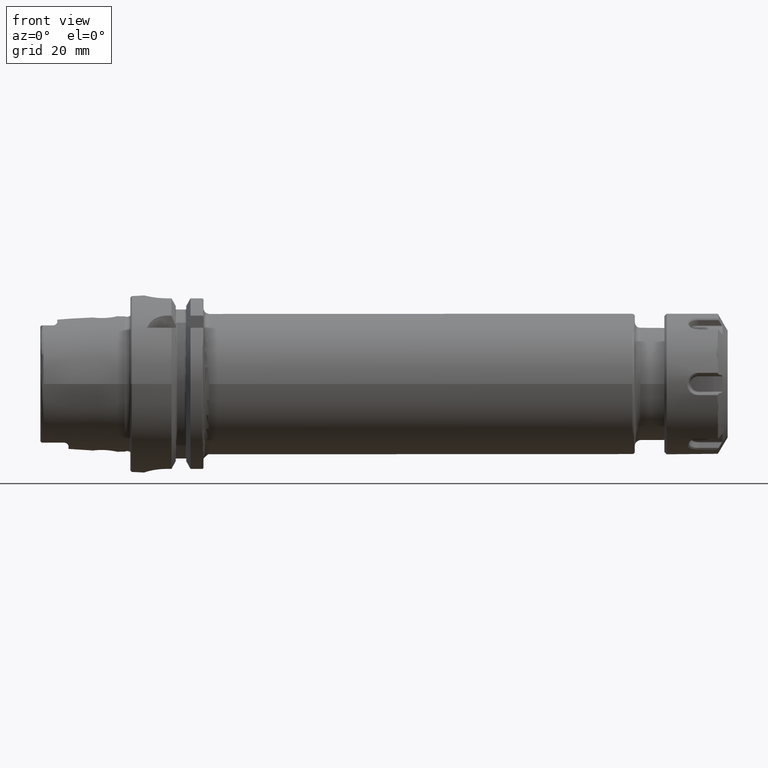
[diagram: clean part render]
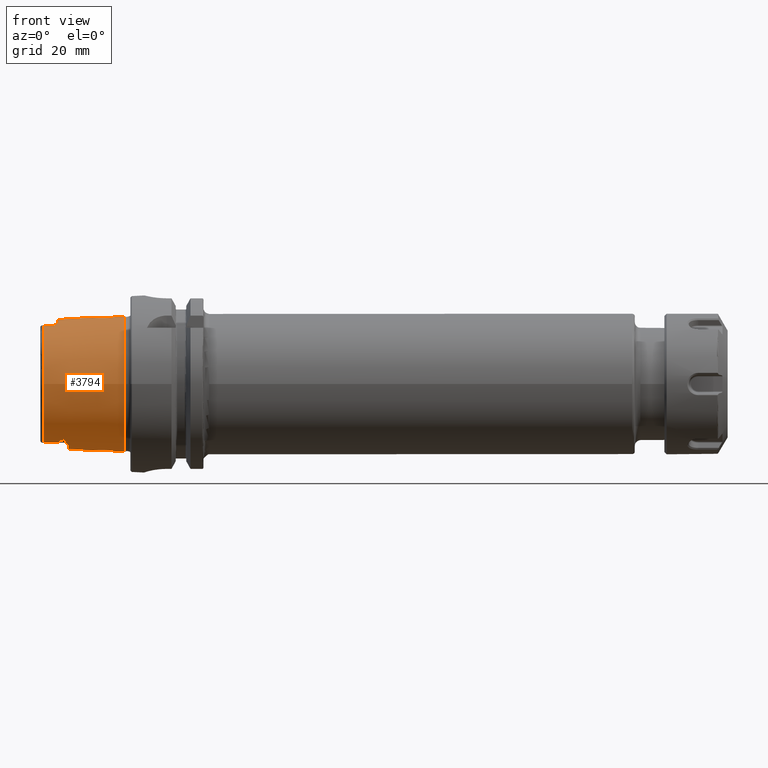
[diagram: same view with one face highlighted and labeled with its STEP entity id]
A machine part, front view. The second image highlights one B-rep face of the part: STEP entity #3794.
In plain terms, the highlighted conical surface has half-angle 2.868 deg.
Its self-contained STEP definition (entity closure, byte-faithful):
#432=(
BOUNDED_CURVE()
B_SPLINE_CURVE(2,(#6080,#6081,#6082),.UNSPECIFIED.,.F.,.F.)
B_SPLINE_CURVE_WITH_KNOTS((3,3),(0.409626932432081,0.704053423593105),
 .UNSPECIFIED.)
CURVE()
GEOMETRIC_REPRESENTATION_ITEM()
RATIONAL_B_SPLINE_CURVE((1.00336468859939,1.00336468859939,1.00162640098087))
REPRESENTATION_ITEM('')
);
#433=(
BOUNDED_CURVE()
B_SPLINE_CURVE(2,(#6147,#6148,#6149),.UNSPECIFIED.,.F.,.F.)
B_SPLINE_CURVE_WITH_KNOTS((3,3),(0.115200441271059,0.409626932432082),
 .UNSPECIFIED.)
CURVE()
GEOMETRIC_REPRESENTATION_ITEM()
RATIONAL_B_SPLINE_CURVE((1.00162640098087,1.00336468859939,1.00336468859939))
REPRESENTATION_ITEM('')
);
#471=B_SPLINE_CURVE_WITH_KNOTS('',3,(#5766,#5767,#5768,#5769,#5770,#5771,
#5772,#5773,#5774,#5775,#5776,#5777,#5778,#5779,#5780,#5781,#5782,#5783),
 .UNSPECIFIED.,.F.,.F.,(4,2,2,2,2,2,2,2,4),(0.937345209538582,1.02529838322405,
1.19618144709472,1.36706451096539,1.42680307053412,1.48654163010284,1.50096970945234,
1.50818374912708,1.51539778880183),.UNSPECIFIED.);
#474=B_SPLINE_CURVE_WITH_KNOTS('',3,(#5834,#5835,#5836,#5837,#5838,#5839,
#5840,#5841,#5842,#5843,#5844,#5845,#5846,#5847,#5848,#5849,#5850,#5851),
 .UNSPECIFIED.,.F.,.F.,(4,2,2,2,2,2,2,2,4),(1.51539778880184,1.52261182847659,
1.52982586815134,1.54425394750083,1.60399250706955,1.66373106663827,1.83461413050895,
2.00549719437962,2.0934503680651),.UNSPECIFIED.);
#476=B_SPLINE_CURVE_WITH_KNOTS('',3,(#5889,#5890,#5891,#5892,#5893,#5894,
#5895,#5896),.UNSPECIFIED.,.F.,.F.,(4,2,2,4),(1.77153596711132,1.83492838643131,
2.00584149209106,2.09371558288111),.UNSPECIFIED.);
#477=B_SPLINE_CURVE_WITH_KNOTS('',3,(#5913,#5914,#5915,#5916,#5917,#5918,
#5919,#5920),.UNSPECIFIED.,.F.,.F.,(4,2,2,4),(0.937604543168422,1.02547863395848,
1.19639173961822,1.25978415893822),.UNSPECIFIED.);
#481=B_SPLINE_CURVE_WITH_KNOTS('',3,(#6052,#6053,#6054,#6055,#6056,#6057,
#6058,#6059,#6060,#6061,#6062,#6063,#6064,#6065,#6066,#6067,#6068,#6069,
#6070,#6071,#6072),.UNSPECIFIED.,.T.,.F.,(4,1,1,1,1,1,1,1,1,1,1,1,1,1,1,
1,1,1,4),(-2.26557970640445,-2.10375258451842,-1.94192546263239,-1.86101190168937,
-1.78009834074636,-1.61827121886032,-1.45644409697429,-1.37553053603127,
-1.29461697508826,-1.18673222716424,-1.07884747924022,-0.970962731316194,
-0.863077983392173,-0.755193235468151,-0.647308487544129,-0.485481365658097,
-0.323654243772065,-0.161827121886032,0.),.UNSPECIFIED.);
#482=B_SPLINE_CURVE_WITH_KNOTS('',3,(#6084,#6085,#6086,#6087,#6088,#6089,
#6090,#6091,#6092,#6093,#6094,#6095,#6096,#6097,#6098,#6099,#6100,#6101),
 .UNSPECIFIED.,.F.,.F.,(4,2,2,2,2,2,2,2,4),(0.,0.0903555875079969,0.135533381261995,
0.180711175015994,0.191679253692351,0.19716329303053,0.202647332368709,
0.208141673454593,0.210684760739668),.UNSPECIFIED.);
#483=B_SPLINE_CURVE_WITH_KNOTS('',3,(#6103,#6104,#6105,#6106,#6107,#6108,
#6109,#6110,#6111,#6112),.UNSPECIFIED.,.F.,.F.,(4,2,2,2,4),(0.278659319230644,
0.333918541832918,0.442805459609059,0.482035165304725,0.500954004489182),
 .UNSPECIFIED.);
#484=B_SPLINE_CURVE_WITH_KNOTS('',3,(#6116,#6117,#6118,#6119,#6120,#6121,
#6122,#6123,#6124,#6125,#6126,#6127),.UNSPECIFIED.,.F.,.F.,(4,2,2,2,2,4),
(0.500954004487676,0.50386398744684,0.528331134037123,0.580812359186529,
0.712749669755937,0.726249722962502),.UNSPECIFIED.);
#485=B_SPLINE_CURVE_WITH_KNOTS('',3,(#6129,#6130,#6131,#6132,#6133,#6134,
#6135,#6136,#6137,#6138,#6139,#6140,#6141,#6142,#6143,#6144,#6145,#6146),
 .UNSPECIFIED.,.F.,.F.,(4,2,2,2,2,2,2,2,4),(0.599581967500703,0.602125054785784,
0.607619395871668,0.613103435209847,0.618587474548027,0.629555553224386,
0.674733346978385,0.719911140732385,0.810266728240384),.UNSPECIFIED.);
#486=B_SPLINE_CURVE_WITH_KNOTS('',3,(#6152,#6153,#6154,#6155,#6156,#6157,
#6158,#6159,#6160,#6161,#6162,#6163,#6164,#6165),.UNSPECIFIED.,.F.,.F.,
(4,2,2,2,2,2,4),(0.612787130114313,0.692070205833102,0.846913877835571,
0.923866042650838,0.97973233720279,1.02631946127952,1.05465853457734),
 .UNSPECIFIED.);
#487=B_SPLINE_CURVE_WITH_KNOTS('',3,(#6168,#6169,#6170,#6171,#6172,#6173,
#6174,#6175,#6176,#6177,#6178,#6179,#6180,#6181),.UNSPECIFIED.,.F.,.F.,
(4,2,2,2,2,2,4),(0.413162960284885,0.443293122422243,0.485069563612126,
0.532728756474865,0.604908335246701,0.737193690325506,0.813919818316776),
 .UNSPECIFIED.);
#488=B_SPLINE_CURVE_WITH_KNOTS('',3,(#6184,#6185,#6186,#6187,#6188,#6189,
#6190,#6191,#6192,#6193,#6194,#6195,#6196,#6197,#6198,#6199,#6200,#6201,
#6202,#6203,#6204),.UNSPECIFIED.,.T.,.F.,(4,1,1,1,1,1,1,1,1,1,1,1,1,1,1,
1,1,1,4),(-2.26557970640445,-2.10375258451842,-1.94192546263239,-1.78009834074636,
-1.61827121886032,-1.45644409697429,-1.37553053603127,-1.29461697508826,
-1.18673222716424,-1.07884747924022,-1.0249051052782,-0.970962731316194,
-0.755193235468151,-0.647308487544129,-0.485481365658097,-0.404567804715081,
-0.323654243772065,-0.161827121886032,0.),.UNSPECIFIED.);
#628=CONICAL_SURFACE('',#4169,23.4974838444284,0.0500583457465973);
#657=FACE_BOUND('',#991,.T.);
#658=FACE_BOUND('',#992,.T.);
#780=FACE_OUTER_BOUND('',#990,.T.);
#990=EDGE_LOOP('',(#2788,#2789,#2790,#2791,#2792,#2793,#2794,#2795,#2796,
#2797,#2798,#2799,#2800,#2801,#2802,#2803,#2804,#2805,#2806,#2807));
#991=EDGE_LOOP('',(#2808));
#992=EDGE_LOOP('',(#2809));
#1215=LINE('',#6077,#1408);
#1408=VECTOR('',#4735,23.4974838444284);
#1601=CIRCLE('',#4170,24.2204308617234);
#1602=CIRCLE('',#4171,22.7745368271334);
#1603=CIRCLE('',#4172,23.2184268537074);
#1604=CIRCLE('',#4173,22.7745368271334);
#1605=CIRCLE('',#4174,23.0180260521042);
#1606=CIRCLE('',#4175,22.7745368271334);
#1816=VERTEX_POINT('',#5763);
#1817=VERTEX_POINT('',#5765);
#1827=VERTEX_POINT('',#5820);
#1828=VERTEX_POINT('',#5833);
#1838=VERTEX_POINT('',#5875);
#1839=VERTEX_POINT('',#5888);
#1845=VERTEX_POINT('',#5910);
#1846=VERTEX_POINT('',#5912);
#1849=VERTEX_POINT('',#6023);
#1852=VERTEX_POINT('',#6074);
#1853=VERTEX_POINT('',#6076);
#1854=VERTEX_POINT('',#6079);
#1855=VERTEX_POINT('',#6083);
#1856=VERTEX_POINT('',#6102);
#1857=VERTEX_POINT('',#6113);
#1858=VERTEX_POINT('',#6115);
#1859=VERTEX_POINT('',#6128);
#1860=VERTEX_POINT('',#6151);
#1861=VERTEX_POINT('',#6166);
#1862=VERTEX_POINT('',#6183);
#2169=EDGE_CURVE('',#1817,#1816,#471,.T.);
#2183=EDGE_CURVE('',#1828,#1827,#474,.T.);
#2196=EDGE_CURVE('',#1839,#1838,#476,.T.);
#2204=EDGE_CURVE('',#1846,#1845,#477,.T.);
#2212=EDGE_CURVE('',#1849,#1849,#481,.T.);
#2213=EDGE_CURVE('',#1852,#1852,#1601,.T.);
#2214=EDGE_CURVE('',#1852,#1853,#1215,.T.);
#2215=EDGE_CURVE('',#1853,#1817,#1602,.T.);
#2216=EDGE_CURVE('',#1816,#1854,#432,.T.);
#2217=EDGE_CURVE('',#1855,#1854,#482,.T.);
#2218=EDGE_CURVE('',#1856,#1855,#483,.T.);
#2219=EDGE_CURVE('',#1856,#1857,#1603,.T.);
#2220=EDGE_CURVE('',#1858,#1857,#484,.T.);
#2221=EDGE_CURVE('',#1859,#1858,#485,.T.);
#2222=EDGE_CURVE('',#1859,#1828,#433,.T.);
#2223=EDGE_CURVE('',#1827,#1846,#1604,.T.);
#2224=EDGE_CURVE('',#1860,#1845,#486,.T.);
#2225=EDGE_CURVE('',#1860,#1861,#1605,.T.);
#2226=EDGE_CURVE('',#1839,#1861,#487,.T.);
#2227=EDGE_CURVE('',#1838,#1853,#1606,.T.);
#2228=EDGE_CURVE('',#1862,#1862,#488,.T.);
#2788=ORIENTED_EDGE('',*,*,#2213,.F.);
#2789=ORIENTED_EDGE('',*,*,#2214,.T.);
#2790=ORIENTED_EDGE('',*,*,#2215,.T.);
#2791=ORIENTED_EDGE('',*,*,#2169,.T.);
#2792=ORIENTED_EDGE('',*,*,#2216,.T.);
#2793=ORIENTED_EDGE('',*,*,#2217,.F.);
#2794=ORIENTED_EDGE('',*,*,#2218,.F.);
#2795=ORIENTED_EDGE('',*,*,#2219,.T.);
#2796=ORIENTED_EDGE('',*,*,#2220,.F.);
#2797=ORIENTED_EDGE('',*,*,#2221,.F.);
#2798=ORIENTED_EDGE('',*,*,#2222,.T.);
#2799=ORIENTED_EDGE('',*,*,#2183,.T.);
#2800=ORIENTED_EDGE('',*,*,#2223,.T.);
#2801=ORIENTED_EDGE('',*,*,#2204,.T.);
#2802=ORIENTED_EDGE('',*,*,#2224,.F.);
#2803=ORIENTED_EDGE('',*,*,#2225,.T.);
#2804=ORIENTED_EDGE('',*,*,#2226,.F.);
#2805=ORIENTED_EDGE('',*,*,#2196,.T.);
#2806=ORIENTED_EDGE('',*,*,#2227,.T.);
#2807=ORIENTED_EDGE('',*,*,#2214,.F.);
#2808=ORIENTED_EDGE('',*,*,#2228,.F.);
#2809=ORIENTED_EDGE('',*,*,#2212,.F.);
#3794=ADVANCED_FACE('',(#780,#657,#658),#628,.T.);
#4169=AXIS2_PLACEMENT_3D('',#6073,#4731,#4732);
#4170=AXIS2_PLACEMENT_3D('',#6075,#4733,#4734);
#4171=AXIS2_PLACEMENT_3D('',#6078,#4736,#4737);
#4172=AXIS2_PLACEMENT_3D('',#6114,#4738,#4739);
#4173=AXIS2_PLACEMENT_3D('',#6150,#4740,#4741);
#4174=AXIS2_PLACEMENT_3D('',#6167,#4742,#4743);
#4175=AXIS2_PLACEMENT_3D('',#6182,#4744,#4745);
#4731=DIRECTION('center_axis',(1.,0.,0.));
#4732=DIRECTION('ref_axis',(0.,1.,0.));
#4733=DIRECTION('center_axis',(1.,0.,0.));
#4734=DIRECTION('ref_axis',(0.,0.,-1.));
#4735=DIRECTION('',(-0.998747342623037,0.0500374420151821,6.1278193201414E-18));
#4736=DIRECTION('center_axis',(1.,0.,0.));
#4737=DIRECTION('ref_axis',(0.,0.,-1.));
#4738=DIRECTION('center_axis',(1.,0.,0.));
#4739=DIRECTION('ref_axis',(0.,1.,0.));
#4740=DIRECTION('center_axis',(1.,0.,0.));
#4741=DIRECTION('ref_axis',(0.,0.,-1.));
#4742=DIRECTION('center_axis',(1.,0.,0.));
#4743=DIRECTION('ref_axis',(0.,1.,0.));
#4744=DIRECTION('center_axis',(1.,0.,0.));
#4745=DIRECTION('ref_axis',(0.,0.,-1.));
#5763=CARTESIAN_POINT('',(-25.0978148584663,-10.4556386714692,-20.5570425901345));
#5765=CARTESIAN_POINT('',(-30.8600449304182,-9.1175788960984,-20.8698175067219));
#5766=CARTESIAN_POINT('Ctrl Pts',(-30.8600449304182,-9.11757889609839,-20.8698175067219));
#5767=CARTESIAN_POINT('Ctrl Pts',(-30.5458909643235,-9.15590567779842,-20.8702489912062));
#5768=CARTESIAN_POINT('Ctrl Pts',(-30.2333885582947,-9.19553638844306,-20.8699331931734));
#5769=CARTESIAN_POINT('Ctrl Pts',(-29.3200764392134,-9.31683719872071,-20.8662835753638));
#5770=CARTESIAN_POINT('Ctrl Pts',(-28.7253632733503,-9.40260250516231,-20.8605355436413));
#5771=CARTESIAN_POINT('Ctrl Pts',(-27.5600080230793,-9.59491882494623,-20.8370744460606));
#5772=CARTESIAN_POINT('Ctrl Pts',(-26.9889879780948,-9.69930871486833,-20.8204848534175));
#5773=CARTESIAN_POINT('Ctrl Pts',(-26.243078447761,-9.87995363103469,-20.7763753921414));
#5774=CARTESIAN_POINT('Ctrl Pts',(-26.0321916389,-9.93536599911181,-20.7617058242075));
#5775=CARTESIAN_POINT('Ctrl Pts',(-25.6226314158803,-10.0671936374524,-20.7209199758996));
#5776=CARTESIAN_POINT('Ctrl Pts',(-25.4220827984544,-10.138547720478,-20.6974983203461));
#5777=CARTESIAN_POINT('Ctrl Pts',(-25.2208246412483,-10.2713306216733,-20.6428847988051));
#5778=CARTESIAN_POINT('Ctrl Pts',(-25.1803732229877,-10.3024924958121,-20.6296329719333));
#5779=CARTESIAN_POINT('Ctrl Pts',(-25.1342239230183,-10.3555186194877,-20.6056268137561));
#5780=CARTESIAN_POINT('Ctrl Pts',(-25.1212840412597,-10.3742534446523,-20.5969290505833));
#5781=CARTESIAN_POINT('Ctrl Pts',(-25.10307563401,-10.4135952575897,-20.5780886428205));
#5782=CARTESIAN_POINT('Ctrl Pts',(-25.0978148584663,-10.434204936409,-20.5679441285336));
#5783=CARTESIAN_POINT('Ctrl Pts',(-25.0978148584663,-10.4556386714692,-20.5570425901345));
#5820=CARTESIAN_POINT('',(-30.8600449304182,9.1175788960984,-20.8698175067219));
#5833=CARTESIAN_POINT('',(-25.0978148584663,10.4556386714692,-20.5570425901345));
#5834=CARTESIAN_POINT('Ctrl Pts',(-25.0978148584663,10.4556386714692,-20.5570425901345));
#5835=CARTESIAN_POINT('Ctrl Pts',(-25.0978148584663,10.434204936409,-20.5679441285336));
#5836=CARTESIAN_POINT('Ctrl Pts',(-25.1030756340098,10.4135952575897,-20.5780886428205));
#5837=CARTESIAN_POINT('Ctrl Pts',(-25.1212840412595,10.3742534446523,-20.5969290505833));
#5838=CARTESIAN_POINT('Ctrl Pts',(-25.1342239230183,10.3555186194877,-20.605626813756));
#5839=CARTESIAN_POINT('Ctrl Pts',(-25.1803732229877,10.3024924958122,-20.6296329719333));
#5840=CARTESIAN_POINT('Ctrl Pts',(-25.2208246412482,10.2713306216733,-20.6428847988051));
#5841=CARTESIAN_POINT('Ctrl Pts',(-25.4220827984543,10.138547720478,-20.6974983203461));
#5842=CARTESIAN_POINT('Ctrl Pts',(-25.6226314158802,10.0671936374525,-20.7209199758995));
#5843=CARTESIAN_POINT('Ctrl Pts',(-26.0321916388999,9.93536599911188,-20.7617058242075));
#5844=CARTESIAN_POINT('Ctrl Pts',(-26.2430784477608,9.8799536310347,-20.7763753921414));
#5845=CARTESIAN_POINT('Ctrl Pts',(-26.9889879780946,9.69930871486834,-20.8204848534175));
#5846=CARTESIAN_POINT('Ctrl Pts',(-27.5600080230791,9.59491882494626,-20.8370744460606));
#5847=CARTESIAN_POINT('Ctrl Pts',(-28.7253632733501,9.40260250516234,-20.8605355436413));
#5848=CARTESIAN_POINT('Ctrl Pts',(-29.3200764392133,9.31683719872073,-20.8662835753638));
#5849=CARTESIAN_POINT('Ctrl Pts',(-30.2333885582946,9.19553638844306,-20.8699331931734));
#5850=CARTESIAN_POINT('Ctrl Pts',(-30.5458909643235,9.15590567779843,-20.8702489912062));
#5851=CARTESIAN_POINT('Ctrl Pts',(-30.8600449304182,9.11757889609839,-20.8698175067219));
#5875=CARTESIAN_POINT('',(-30.8600449304182,-9.1175788960984,20.8698175067219));
#5888=CARTESIAN_POINT('',(-27.5000000000755,-9.61067758640857,20.8329168403914));
#5889=CARTESIAN_POINT('Ctrl Pts',(-27.500000000078,-9.61067758642201,20.8329168403892));
#5890=CARTESIAN_POINT('Ctrl Pts',(-27.7125737548958,-9.57148784129481,20.8392673030342));
#5891=CARTESIAN_POINT('Ctrl Pts',(-27.9270578144772,-9.53434241390281,20.8444654011212));
#5892=CARTESIAN_POINT('Ctrl Pts',(-28.7259960474271,-9.40250589525003,20.8605443506117));
#5893=CARTESIAN_POINT('Ctrl Pts',(-29.3208153495341,-9.3167323629879,20.8662898636256));
#5894=CARTESIAN_POINT('Ctrl Pts',(-30.2339565561897,-9.19546438357122,20.8699337533607));
#5895=CARTESIAN_POINT('Ctrl Pts',(-30.5461763429502,-9.15587086160794,20.8702485992441));
#5896=CARTESIAN_POINT('Ctrl Pts',(-30.8600449304182,-9.11757889609839,20.8698175067219));
#5910=CARTESIAN_POINT('',(-27.5000000000755,9.61067758640857,20.8329168403914));
#5912=CARTESIAN_POINT('',(-30.8600449304182,9.1175788960984,20.8698175067219));
#5913=CARTESIAN_POINT('Ctrl Pts',(-30.8600449304182,9.11757889609839,20.8698175067219));
#5914=CARTESIAN_POINT('Ctrl Pts',(-30.5461763429502,9.15587086160794,20.8702485992441));
#5915=CARTESIAN_POINT('Ctrl Pts',(-30.2339565561898,9.1954643835712,20.8699337533607));
#5916=CARTESIAN_POINT('Ctrl Pts',(-29.3208153495341,9.31673236298789,20.8662898636256));
#5917=CARTESIAN_POINT('Ctrl Pts',(-28.7259960474271,9.40250589525004,20.8605443506117));
#5918=CARTESIAN_POINT('Ctrl Pts',(-27.9270578144772,9.53434241390281,20.8444654011213));
#5919=CARTESIAN_POINT('Ctrl Pts',(-27.7125737548958,9.57148784129481,20.8392673030342));
#5920=CARTESIAN_POINT('Ctrl Pts',(-27.500000000078,9.61067758642201,20.8329168403892));
#6023=CARTESIAN_POINT('',(-9.02925407423461,4.24282684078987,-23.4881339907642));
#6052=CARTESIAN_POINT('Ctrl Pts',(-9.02925407423461,4.24282684078987,-23.4881339907642));
#6053=CARTESIAN_POINT('Ctrl Pts',(-8.41794937729802,4.24763962021184,-23.5183867686952));
#6054=CARTESIAN_POINT('Ctrl Pts',(-7.09719062335626,3.96214027152736,-23.6400391343347));
#6055=CARTESIAN_POINT('Ctrl Pts',(-5.85872384144614,2.97350456469995,-23.8514262488192));
#6056=CARTESIAN_POINT('Ctrl Pts',(-5.16063731756733,1.91003066646729,-23.9915936511341));
#6057=CARTESIAN_POINT('Ctrl Pts',(-4.71967908413408,0.667233683255142,-24.0892210412975));
#6058=CARTESIAN_POINT('Ctrl Pts',(-4.69487671176925,-0.887140287368457,
-24.0946920123011));
#6059=CARTESIAN_POINT('Ctrl Pts',(-5.41575081787389,-2.43754371827964,-23.9347651451498));
#6060=CARTESIAN_POINT('Ctrl Pts',(-6.27200380070453,-3.29839456985501,-23.7808774616528));
#6061=CARTESIAN_POINT('Ctrl Pts',(-7.16157899956841,-3.8911177348338,-23.6460473005722));
#6062=CARTESIAN_POINT('Ctrl Pts',(-8.32145673061719,-4.25090987526345,-23.5228217546797));
#6063=CARTESIAN_POINT('Ctrl Pts',(-9.55257943298201,-4.26858049401254,-23.456823819944));
#6064=CARTESIAN_POINT('Ctrl Pts',(-10.8313666496774,-3.90479981259957,-23.4573341216261));
#6065=CARTESIAN_POINT('Ctrl Pts',(-11.8961422246607,-3.1841113544275,-23.5146565929276));
#6066=CARTESIAN_POINT('Ctrl Pts',(-12.7003698798572,-2.21954630167764,-23.5891273633448));
#6067=CARTESIAN_POINT('Ctrl Pts',(-13.2855020445789,-0.774775065590821,
-23.6608303251767));
#6068=CARTESIAN_POINT('Ctrl Pts',(-13.2993151465013,0.893979362185892,-23.6627026291545));
#6069=CARTESIAN_POINT('Ctrl Pts',(-12.4532300975689,2.72994365265342,-23.5583564408809));
#6070=CARTESIAN_POINT('Ctrl Pts',(-10.9641321027099,3.91707089294868,-23.4490088113463));
#6071=CARTESIAN_POINT('Ctrl Pts',(-9.64055877117117,4.23801406136791,-23.4578812128331));
#6072=CARTESIAN_POINT('Ctrl Pts',(-9.02925407423461,4.24282684078988,-23.4881339907642));
#6073=CARTESIAN_POINT('Origin',(-16.4300224652091,0.,0.));
#6074=CARTESIAN_POINT('',(-2.,-24.2204308617234,-2.96614731287794E-15));
#6075=CARTESIAN_POINT('Origin',(-2.,0.,0.));
#6076=CARTESIAN_POINT('',(-30.8600449304182,-22.7745368271334,-2.78907636274124E-15));
#6077=CARTESIAN_POINT('',(-16.4300224652091,-23.4974838444284,-2.87761183780959E-15));
#6078=CARTESIAN_POINT('Origin',(-30.8600449304182,0.,0.));
#6079=CARTESIAN_POINT('',(-23.5,-12.1698923613067,-19.6851459107563));
#6080=CARTESIAN_POINT('Ctrl Pts',(-25.0978148584663,-10.4556386714692,-20.5570425901345));
#6081=CARTESIAN_POINT('Ctrl Pts',(-25.0978148584663,-11.3112805797553,-20.1218495128239));
#6082=CARTESIAN_POINT('Ctrl Pts',(-23.5,-12.1698923613067,-19.6851459107563));
#6083=CARTESIAN_POINT('',(-22.9409864229987,-10.5046262057925,-20.6533579718259));
#6084=CARTESIAN_POINT('Ctrl Pts',(-22.9409864229987,-10.5046262057925,-20.6533579718259));
#6085=CARTESIAN_POINT('Ctrl Pts',(-22.9409864229987,-10.7730829666602,-20.516816595398));
#6086=CARTESIAN_POINT('Ctrl Pts',(-22.9574206817668,-11.0623666606509,-20.3616089931375));
#6087=CARTESIAN_POINT('Ctrl Pts',(-23.0214299513488,-11.4761009466796,-20.1257517714531));
#6088=CARTESIAN_POINT('Ctrl Pts',(-23.0491283200772,-11.6099871059181,-20.0471312410654));
#6089=CARTESIAN_POINT('Ctrl Pts',(-23.1253497318037,-11.8635092488451,-19.8937049027563));
#6090=CARTESIAN_POINT('Ctrl Pts',(-23.1681553584466,-11.9845149642791,-19.8183788237048));
#6091=CARTESIAN_POINT('Ctrl Pts',(-23.2720205567489,-12.1145084587468,-19.7327054731899));
#6092=CARTESIAN_POINT('Ctrl Pts',(-23.2970638659452,-12.1405120406692,-19.7152346163683));
#6093=CARTESIAN_POINT('Ctrl Pts',(-23.340824213029,-12.1694983830269,-19.6947680043585));
#6094=CARTESIAN_POINT('Ctrl Pts',(-23.3564336502031,-12.1775072041959,-19.6888951705931));
#6095=CARTESIAN_POINT('Ctrl Pts',(-23.3894992563298,-12.1884299822762,-19.6801867490419));
#6096=CARTESIAN_POINT('Ctrl Pts',(-23.4069516148396,-12.191352087042,-19.6773469156348));
#6097=CARTESIAN_POINT('Ctrl Pts',(-23.4435003757557,-12.1903876993059,-19.675790353909));
#6098=CARTESIAN_POINT('Ctrl Pts',(-23.4609883159786,-12.1865341044229,-19.6771480362853));
#6099=CARTESIAN_POINT('Ctrl Pts',(-23.4852443648865,-12.1772664781571,-19.6814547071094));
#6100=CARTESIAN_POINT('Ctrl Pts',(-23.4927247382132,-12.1738018414638,-19.6831574869965));
#6101=CARTESIAN_POINT('Ctrl Pts',(-23.5,-12.1698923613067,-19.6851459107563));
#6102=CARTESIAN_POINT('',(-22.,-7.4031250016059,-22.0065691504051));
#6103=CARTESIAN_POINT('Ctrl Pts',(-22.,-7.4031250016064,-22.0065691504049));
#6104=CARTESIAN_POINT('Ctrl Pts',(-22.,-7.64154328791244,-21.9263639914758));
#6105=CARTESIAN_POINT('Ctrl Pts',(-22.0282316966018,-7.93106690411137,-21.8234540350138));
#6106=CARTESIAN_POINT('Ctrl Pts',(-22.2899989017396,-8.94727995671646,-21.421774019244));
#6107=CARTESIAN_POINT('Ctrl Pts',(-22.60775210997,-9.49253651928731,-21.1610368486918));
#6108=CARTESIAN_POINT('Ctrl Pts',(-22.8524785496019,-10.0580168739411,-20.8800894739587));
#6109=CARTESIAN_POINT('Ctrl Pts',(-22.8997008986804,-10.1907353571143,-20.8128334005565));
#6110=CARTESIAN_POINT('Ctrl Pts',(-22.9350020039233,-10.381785274935,-20.7158310407179));
#6111=CARTESIAN_POINT('Ctrl Pts',(-22.9409864229987,-10.4428555441716,-20.6847755123391));
#6112=CARTESIAN_POINT('Ctrl Pts',(-22.9409864229987,-10.5046262057925,-20.6533579718259));
#6113=CARTESIAN_POINT('',(-22.,7.4031250016059,-22.0065691504051));
#6114=CARTESIAN_POINT('Origin',(-22.,0.,0.));
#6115=CARTESIAN_POINT('',(-22.9409864229987,10.5046262057925,-20.6533579718259));
#6116=CARTESIAN_POINT('Ctrl Pts',(-22.9409864229987,10.5046262057925,-20.6533579718259));
#6117=CARTESIAN_POINT('Ctrl Pts',(-22.9409864229987,10.4951250111927,-20.6581904304467));
#6118=CARTESIAN_POINT('Ctrl Pts',(-22.9408450644905,10.4856070684351,-20.6630311043921));
#6119=CARTESIAN_POINT('Ctrl Pts',(-22.9381719760295,10.3958439048842,-20.7086800932502));
#6120=CARTESIAN_POINT('Ctrl Pts',(-22.9258072553349,10.3185989460598,-20.747952822378));
#6121=CARTESIAN_POINT('Ctrl Pts',(-22.8649803787077,10.0769327863764,-20.8704196245159));
#6122=CARTESIAN_POINT('Ctrl Pts',(-22.7887679321626,9.90306802919886,-20.9581178536208));
#6123=CARTESIAN_POINT('Ctrl Pts',(-22.4484945404157,9.18505116717875,-21.3075925571443));
#6124=CARTESIAN_POINT('Ctrl Pts',(-22.0746753976002,8.47121172659649,-21.631485700585));
#6125=CARTESIAN_POINT('Ctrl Pts',(-22.0031617045067,7.56447021316982,-21.9516456669287));
#6126=CARTESIAN_POINT('Ctrl Pts',(-22.,7.48262387019776,-21.9798253150689));
#6127=CARTESIAN_POINT('Ctrl Pts',(-22.,7.40312500160694,-22.0065691504047));
#6128=CARTESIAN_POINT('',(-23.5,12.1698923613067,-19.6851459107563));
#6129=CARTESIAN_POINT('Ctrl Pts',(-23.5,12.1698923613067,-19.6851459107563));
#6130=CARTESIAN_POINT('Ctrl Pts',(-23.4927247382132,12.1738018414639,-19.6831574869965));
#6131=CARTESIAN_POINT('Ctrl Pts',(-23.4852443648865,12.1772664781571,-19.6814547071094));
#6132=CARTESIAN_POINT('Ctrl Pts',(-23.4609883159786,12.1865341044229,-19.6771480362853));
#6133=CARTESIAN_POINT('Ctrl Pts',(-23.4435003757557,12.190387699306,-19.6757903539089));
#6134=CARTESIAN_POINT('Ctrl Pts',(-23.4069516148396,12.1913520870421,-19.6773469156348));
#6135=CARTESIAN_POINT('Ctrl Pts',(-23.3894992563298,12.1884299822762,-19.6801867490419));
#6136=CARTESIAN_POINT('Ctrl Pts',(-23.3564336502031,12.1775072041959,-19.688895170593));
#6137=CARTESIAN_POINT('Ctrl Pts',(-23.340824213029,12.169498383027,-19.6947680043585));
#6138=CARTESIAN_POINT('Ctrl Pts',(-23.2970638659452,12.1405120406693,-19.7152346163683));
#6139=CARTESIAN_POINT('Ctrl Pts',(-23.2720205567489,12.1145084587468,-19.7327054731899));
#6140=CARTESIAN_POINT('Ctrl Pts',(-23.1681553584466,11.9845149642791,-19.8183788237047));
#6141=CARTESIAN_POINT('Ctrl Pts',(-23.1253497318037,11.8635092488451,-19.8937049027563));
#6142=CARTESIAN_POINT('Ctrl Pts',(-23.0491283200772,11.6099871059182,-20.0471312410654));
#6143=CARTESIAN_POINT('Ctrl Pts',(-23.0214299513488,11.4761009466796,-20.1257517714531));
#6144=CARTESIAN_POINT('Ctrl Pts',(-22.9574206817668,11.0623666606509,-20.3616089931375));
#6145=CARTESIAN_POINT('Ctrl Pts',(-22.9409864229987,10.7730829666602,-20.516816595398));
#6146=CARTESIAN_POINT('Ctrl Pts',(-22.9409864229987,10.5046262057925,-20.6533579718259));
#6147=CARTESIAN_POINT('Ctrl Pts',(-23.5,12.1698923613067,-19.6851459107563));
#6148=CARTESIAN_POINT('Ctrl Pts',(-25.0978148584663,11.3112805797553,-20.1218495128239));
#6149=CARTESIAN_POINT('Ctrl Pts',(-25.0978148584662,10.4556386714692,-20.5570425901345));
#6150=CARTESIAN_POINT('Origin',(-30.8600449304182,0.,0.));
#6151=CARTESIAN_POINT('',(-26.,7.14127219004964,21.8822246319466));
#6152=CARTESIAN_POINT('Ctrl Pts',(-26.,7.14127219004961,21.8822246319466));
#6153=CARTESIAN_POINT('Ctrl Pts',(-26.,7.38735946023371,21.801913959314));
#6154=CARTESIAN_POINT('Ctrl Pts',(-26.033972788753,7.63482296419265,21.7146832850108));
#6155=CARTESIAN_POINT('Ctrl Pts',(-26.2194423861809,8.34889404999889,21.4446815988103));
#6156=CARTESIAN_POINT('Ctrl Pts',(-26.4428793547878,8.75952114583654,21.2645357982171));
#6157=CARTESIAN_POINT('Ctrl Pts',(-26.7590254549197,9.19092879202869,21.0625769757814));
#6158=CARTESIAN_POINT('Ctrl Pts',(-26.8729708291721,9.32104212441475,20.9987774802421));
#6159=CARTESIAN_POINT('Ctrl Pts',(-27.0716948778125,9.49280512119961,20.9106159819251));
#6160=CARTESIAN_POINT('Ctrl Pts',(-27.144806553738,9.53932652154805,20.8852782118319));
#6161=CARTESIAN_POINT('Ctrl Pts',(-27.2637975599135,9.59417850538166,20.8535668796639));
#6162=CARTESIAN_POINT('Ctrl Pts',(-27.322222387454,9.61219549867679,20.8420263003947));
#6163=CARTESIAN_POINT('Ctrl Pts',(-27.4236635149584,9.61988157707407,20.8328813745288));
#6164=CARTESIAN_POINT('Ctrl Pts',(-27.4617925463603,9.61772144927266,20.8317754247499));
#6165=CARTESIAN_POINT('Ctrl Pts',(-27.5000000000779,9.61067758642203,20.8329168403892));
#6166=CARTESIAN_POINT('',(-26.,-7.14127219004964,21.8822246319466));
#6167=CARTESIAN_POINT('Origin',(-26.,0.,0.));
#6168=CARTESIAN_POINT('Ctrl Pts',(-27.500000000078,-9.610677586422,20.8329168403892));
#6169=CARTESIAN_POINT('Ctrl Pts',(-27.4634308025005,-9.61741942308555,20.8318243662782));
#6170=CARTESIAN_POINT('Ctrl Pts',(-27.4260889661871,-9.61985292316152,20.8327607188551));
#6171=CARTESIAN_POINT('Ctrl Pts',(-27.3343377981765,-9.61339298685805,20.8408051456548));
#6172=CARTESIAN_POINT('Ctrl Pts',(-27.2828394544385,-9.59996378018902,20.8498476845684));
#6173=CARTESIAN_POINT('Ctrl Pts',(-27.1765640574038,-9.55615724159004,20.8758218933212));
#6174=CARTESIAN_POINT('Ctrl Pts',(-27.111584300389,-9.51976030908576,20.8961199655304));
#6175=CARTESIAN_POINT('Ctrl Pts',(-26.9153060284285,-9.36478934458731,20.9769473005223));
#6176=CARTESIAN_POINT('Ctrl Pts',(-26.7955937204007,-9.23492374831594,21.0413520243865));
#6177=CARTESIAN_POINT('Ctrl Pts',(-26.4809422997755,-8.82026009617074,21.2370375105362));
#6178=CARTESIAN_POINT('Ctrl Pts',(-26.2539798154924,-8.42841535117176,21.4117405279022));
#6179=CARTESIAN_POINT('Ctrl Pts',(-26.0395031937781,-7.68065048502185,21.6986739773255));
#6180=CARTESIAN_POINT('Ctrl Pts',(-26.,-7.40668123592282,21.7956082905937));
#6181=CARTESIAN_POINT('Ctrl Pts',(-26.,-7.14127219004964,21.8822246319466));
#6182=CARTESIAN_POINT('Origin',(-30.8600449304182,0.,0.));
#6183=CARTESIAN_POINT('',(-9.0292540742346,4.24282684078987,23.4881339907642));
#6184=CARTESIAN_POINT('Ctrl Pts',(-9.0292540742346,4.24282684078987,23.4881339907642));
#6185=CARTESIAN_POINT('Ctrl Pts',(-9.64055877117117,4.23801406136791,23.4578812128331));
#6186=CARTESIAN_POINT('Ctrl Pts',(-10.9638730702336,3.91798236438986,23.4489970857899));
#6187=CARTESIAN_POINT('Ctrl Pts',(-12.4525958595704,2.72863690378587,23.5583136537412));
#6188=CARTESIAN_POINT('Ctrl Pts',(-13.2979904921632,0.897590812051159,23.6626376623402));
#6189=CARTESIAN_POINT('Ctrl Pts',(-13.2815658701657,-0.98999302529681,23.6604426532769));
#6190=CARTESIAN_POINT('Ctrl Pts',(-12.5283174417603,-2.51201387505666,23.5683654759453));
#6191=CARTESIAN_POINT('Ctrl Pts',(-11.6444040622836,-3.36174194412279,23.50003047831));
#6192=CARTESIAN_POINT('Ctrl Pts',(-10.7212741834396,-3.93934579023148,23.4568699868312));
#6193=CARTESIAN_POINT('Ctrl Pts',(-9.5509992773888,-4.26722573729756,23.4569375771407));
#6194=CARTESIAN_POINT('Ctrl Pts',(-8.52867241778628,-4.25003876713782,23.5122547979276));
#6195=CARTESIAN_POINT('Ctrl Pts',(-7.68780586799832,-4.05338928451488,23.5899164151454));
#6196=CARTESIAN_POINT('Ctrl Pts',(-6.48553931138608,-3.55436322843895,23.7337139580667));
#6197=CARTESIAN_POINT('Ctrl Pts',(-5.4130820429913,-2.55345835746536,23.93595268899));
#6198=CARTESIAN_POINT('Ctrl Pts',(-4.69884914086794,-0.680968659887892,
24.0937023327386));
#6199=CARTESIAN_POINT('Ctrl Pts',(-4.71937382006398,0.664900361610849,24.08935727819));
#6200=CARTESIAN_POINT('Ctrl Pts',(-5.16062521092841,1.90899044718831,23.9916071295055));
#6201=CARTESIAN_POINT('Ctrl Pts',(-5.8586063866709,2.97237256239872,23.8514805565406));
#6202=CARTESIAN_POINT('Ctrl Pts',(-7.09720951544069,3.96193589367342,23.6400338901471));
#6203=CARTESIAN_POINT('Ctrl Pts',(-8.41794937729801,4.24763962021184,23.5183867686952));
#6204=CARTESIAN_POINT('Ctrl Pts',(-9.0292540742346,4.24282684078988,23.4881339907642));